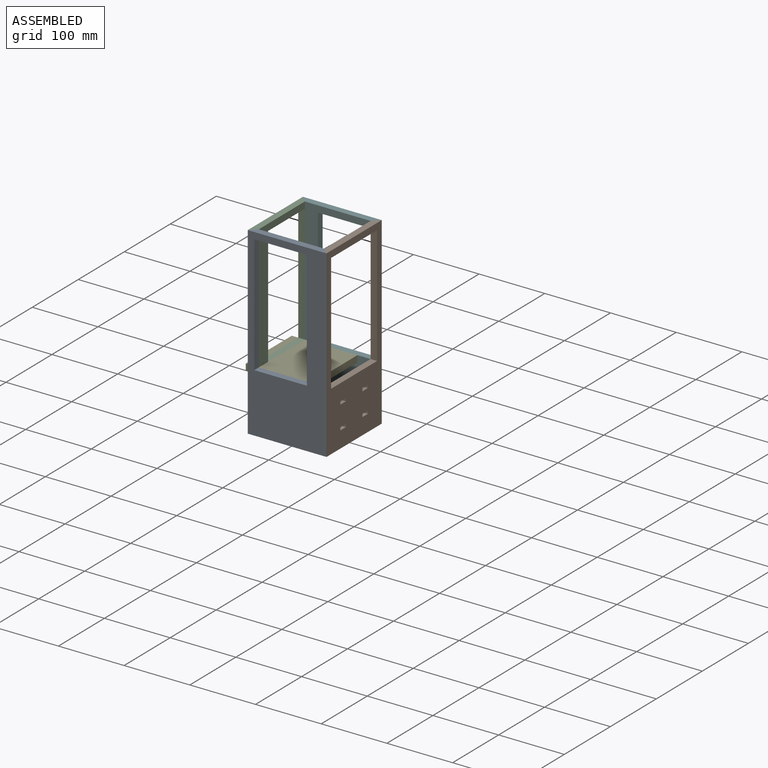
[diagram: assembled view]
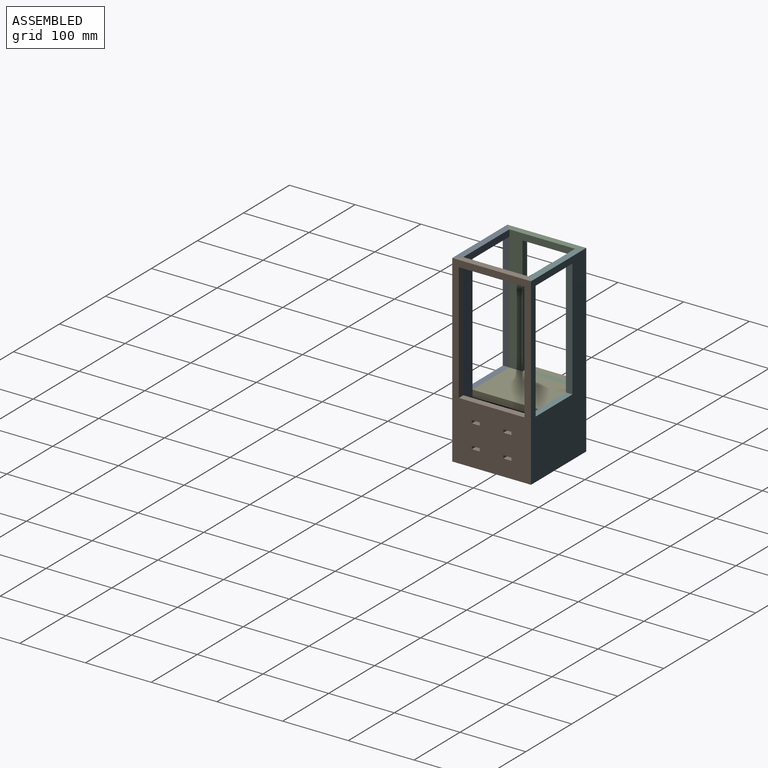
[diagram: assembled view, second angle]
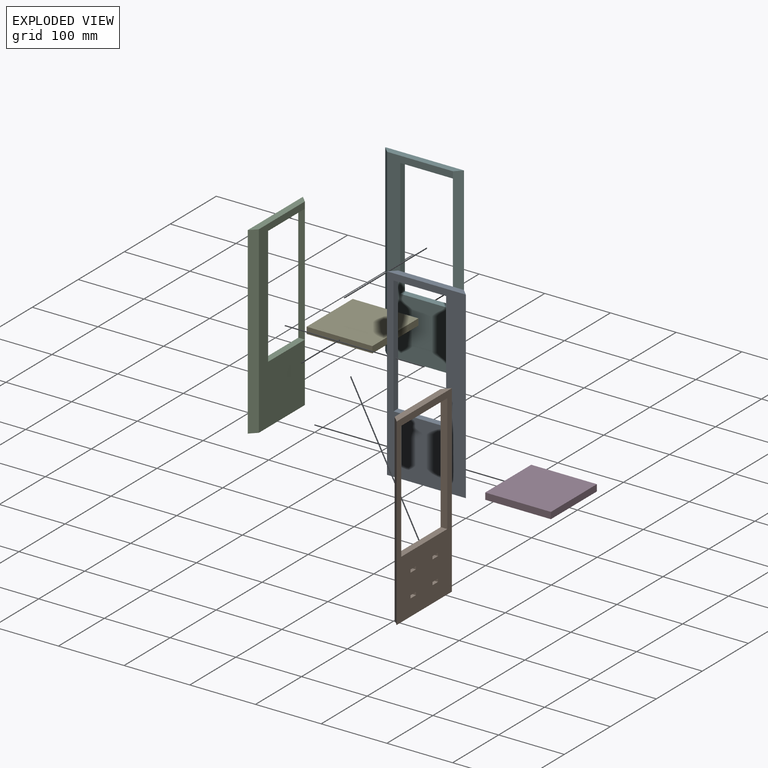
[diagram: exploded view]
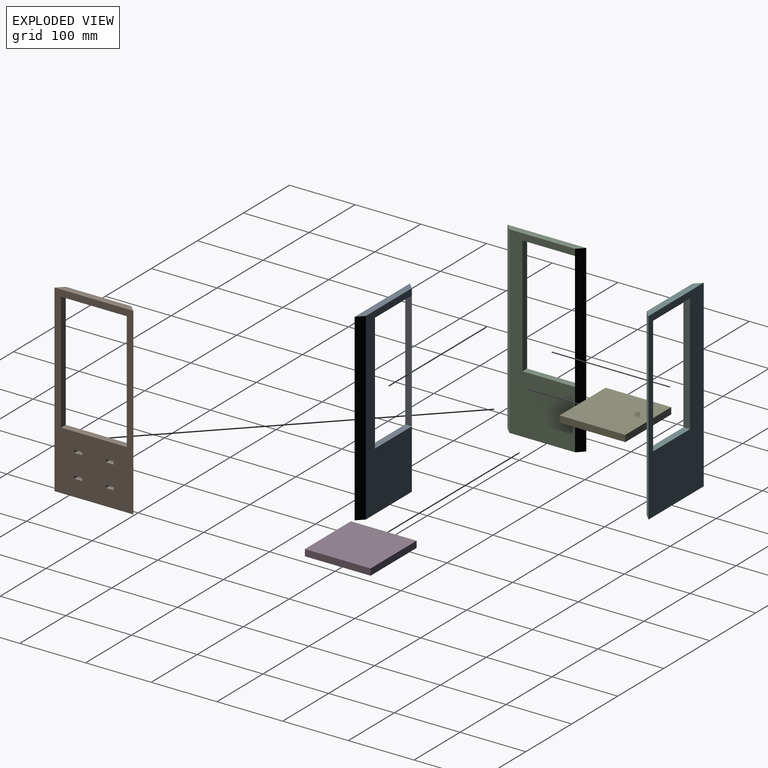
[diagram: exploded view, second angle]
ASSEMBLY  parts=6 mates=5
PART A: 10 faces, bbox 120x10x280 mm
  f0: plane 120x10mm, normal (0,0,1), area 1100mm2, adj f2,f7,f8,f9
  f1: plane 120x10mm, normal (0,0,-1), area 1100mm2, adj f2,f7,f8,f9
  f2: plane 280x100mm, normal (0,1,0), area 13600mm2, adj f0,f1,f4,f5,f6,f8,f9
  f3: plane 180x10mm, normal (1,0,0), area 1800mm2, adj f4,f6,f7,f8
  f4: plane 80x10mm, normal (0,0,-1), area 800mm2, adj f2,f3,f5,f7
  f5: plane 180x10mm, normal (-1,0,0), area 1800mm2, adj f2,f4,f6,f7
  f6: plane 80x10mm, normal (0,0,1), area 800mm2, adj f2,f3,f5,f7
  f7: plane 280x120mm, normal (0,-1,0), area 19200mm2, adj f0,f1,f3,f4,f5,f6,f8,f9
  f8: plane 280x10mm, normal (-0.71,0.71,0), area 3959.8mm2, adj f0,f1,f2,f3,f7
  f9: plane 280x10mm, normal (0.71,0.71,0), area 3959.8mm2, adj f0,f1,f2,f7
PART B: 27 faces, bbox 120x10x280 mm
  f0: plane 100x90mm, normal (0,1,0), area 8784mm2, adj f3,f7,f8,f9,f10,f11,f12,f13
  f1: plane 100x10mm, normal (0,1,0), area 1000mm2, adj f2,f5,f25,f26
  f2: plane 120x10mm, normal (0,0,1), area 1100mm2, adj f1,f24,f25,f26
  f3: plane 120x10mm, normal (0,0,-1), area 1100mm2, adj f0,f24,f25,f26
  f4: plane 180x10mm, normal (1,0,0), area 1800mm2, adj f5,f19,f24,f25
  f5: plane 100x10mm, normal (0,0,-1), area 1000mm2, adj f1,f4,f6,f24
  f6: plane 180x10mm, normal (-1,0,0), area 1800mm2, adj f5,f19,f24,f26
  f7: plane 10x4.5mm, normal (1,0,0), area 45mm2, adj f0,f8,f20,f24
  f8: plane 12x10mm, normal (0,0,-1), area 120mm2, adj f0,f7,f9,f24
  f9: plane 10x4.5mm, normal (-1,0,0), area 45mm2, adj f0,f8,f20,f24
  f10: plane 10x4.5mm, normal (1,0,0), area 45mm2, adj f0,f11,f21,f24
  f11: plane 12x10mm, normal (0,0,-1), area 120mm2, adj f0,f10,f12,f24
  f12: plane 10x4.5mm, normal (-1,0,0), area 45mm2, adj f0,f11,f21,f24
  f13: plane 10x4.5mm, normal (1,0,0), area 45mm2, adj f0,f14,f22,f24
  f14: plane 12x10mm, normal (0,0,-1), area 120mm2, adj f0,f13,f15,f24
  f15: plane 10x4.5mm, normal (-1,0,0), area 45mm2, adj f0,f14,f22,f24
  f16: plane 10x4.5mm, normal (1,0,0), area 45mm2, adj f0,f17,f23,f24
  f17: plane 12x10mm, normal (0,0,-1), area 120mm2, adj f0,f16,f18,f24
  f18: plane 10x4.5mm, normal (-1,0,0), area 45mm2, adj f0,f17,f23,f24
  f19: plane 100x10mm, normal (0,0,1), area 1000mm2, adj f0,f4,f6,f24
  f20: plane 12x10mm, normal (0,0,1), area 120mm2, adj f0,f7,f9,f24
  f21: plane 12x10mm, normal (0,0,1), area 120mm2, adj f0,f10,f12,f24
  f22: plane 12x10mm, normal (0,0,1), area 120mm2, adj f0,f13,f15,f24
  f23: plane 12x10mm, normal (0,0,1), area 120mm2, adj f0,f16,f18,f24
  f24: plane 280x120mm, normal (0,-1,0), area 15384mm2, adj f2,f3,f4,f5,f6,f7,f8,f9
  f25: plane 280x10mm, normal (-0.71,0.71,0), area 3959.8mm2, adj f0,f1,f2,f3,f4,f24
  f26: plane 280x10mm, normal (0.71,0.71,0), area 3959.8mm2, adj f0,f1,f2,f3,f6,f24
PART C: same geometry as A
PART D: 6 faces, bbox 100x100x10 mm
  f0: plane 100x10mm, normal (0,1,0), area 1000mm2, adj f1,f3,f4,f5
  f1: plane 100x10mm, normal (-1,0,0), area 1000mm2, adj f0,f2,f4,f5
  f2: plane 100x10mm, normal (0,-1,0), area 1000mm2, adj f1,f3,f4,f5
  f3: plane 100x10mm, normal (1,0,0), area 1000mm2, adj f0,f2,f4,f5
  f4: plane 100x100mm, normal (0,0,1), area 10000mm2, adj f0,f1,f2,f3
  f5: plane 100x100mm, normal (0,0,-1), area 10000mm2, adj f0,f1,f2,f3
PART E: same geometry as D
PART F: same geometry as A
PLACE A t=(-20.35,-50,77.09)mm
PLACE B rot(axis=(0,0,1),90deg) t=(50,-18,77.09)mm
PLACE C rot(axis=(0,0,-1),90deg) t=(-50,20.35,77.09)mm
PLACE D t=(22.58,-14.78,0)mm
PLACE E t=(2.58,-14.78,80)mm
PLACE F rot(axis=(0,0,-1),180deg) t=(20.35,50,77.09)mm
MATE fastened F.f9 <-> C.f8  axis (-0.71,-0.71,0) through (-55,55,140)mm
MATE fastened E.f2 <-> A.f2  axis (0,-1,0) through (30,-50,90)mm
MATE fastened B.f0 <-> D.f3  axis (-1,0,0) through (50,-50,0)mm
MATE fastened B.f26 <-> F.f8  axis (-0.71,0.71,0) through (55,55,140)mm
MATE fastened C.f9 <-> A.f8  axis (0.71,-0.71,0) through (-55,-55,140)mm
